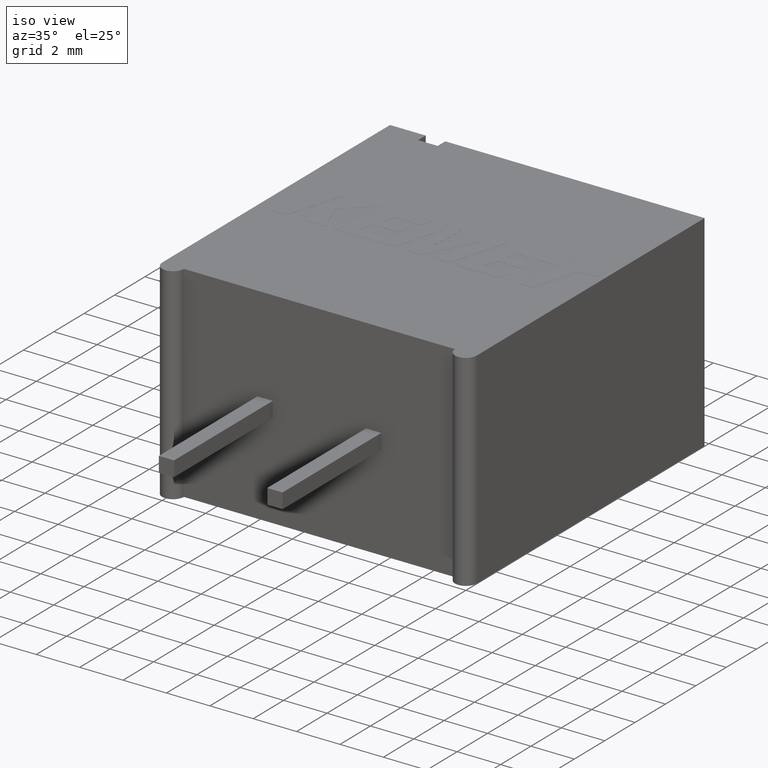
[diagram: clean part render]
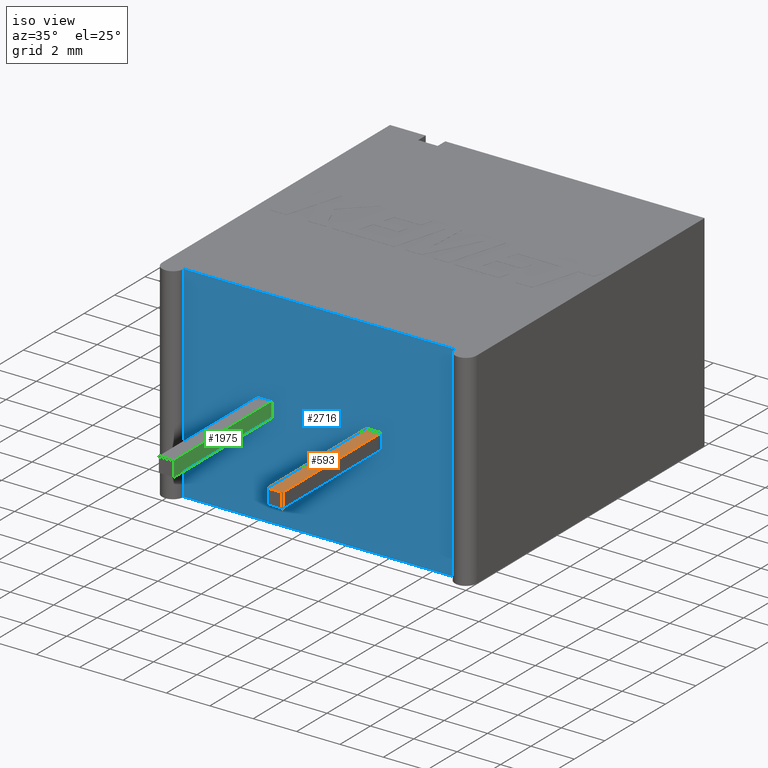
[diagram: same view with three faces highlighted in distinct colors, each labeled with its STEP entity id]
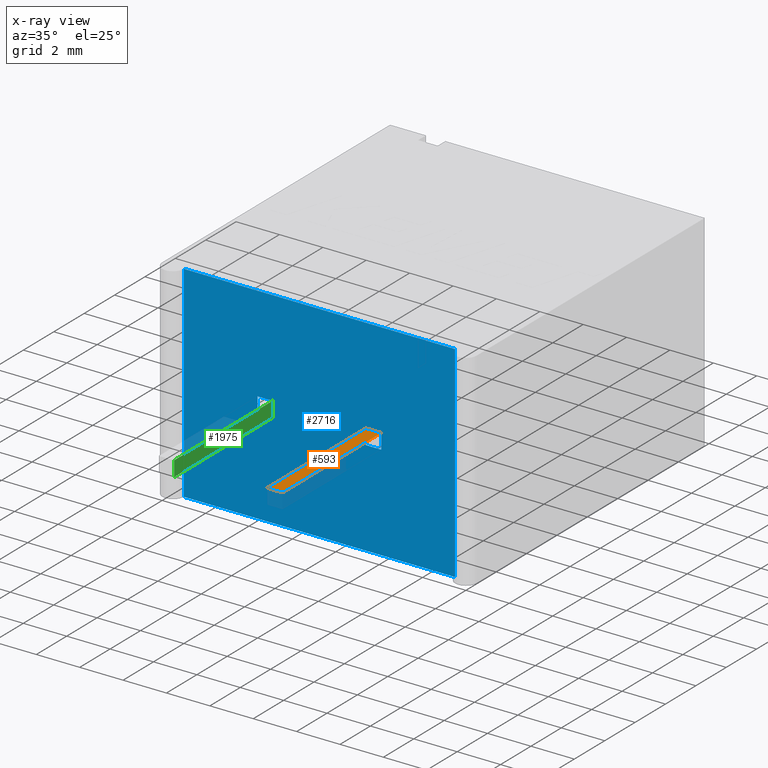
[diagram: x-ray of the same camera — body ghosted, the three highlighted faces saturated]
A machine part, iso view with three faces highlighted in distinct colors.
The next image is the same camera in x-ray (body ghosted, the three faces saturated) — at least one of them is partly hidden behind the body in this view.
Their STEP definitions:

[orange] entity #593 — the highlighted planar face has unit normal (0, 0, 1).
#90 = CARTESIAN_POINT ( 'NONE',  ( 10.10000000000000100, -6.500000000000000000, 5.099999999999997000 ) ) ;
#390 = LINE ( 'NONE', #1962, #834 ) ;
#534 = VERTEX_POINT ( 'NONE', #1828 ) ;
#593 = ADVANCED_FACE ( 'NONE', ( #2793 ), #1228, .T. ) ;
#666 = ORIENTED_EDGE ( 'NONE', *, *, #1034, .F. ) ;
#706 = VECTOR ( 'NONE', #2553, 1000.000000000000000 ) ;
#729 = CARTESIAN_POINT ( 'NONE',  ( 9.400000000000002100, -6.500000000000000000, 5.099999999999997000 ) ) ;
#783 = AXIS2_PLACEMENT_3D ( 'NONE', #2282, #2728, #791 ) ;
#791 = DIRECTION ( 'NONE',  ( 1.000000000000000000, 0.0000000000000000000, -0.0000000000000000000 ) ) ;
#834 = VECTOR ( 'NONE', #1141, 1000.000000000000000 ) ;
#1015 = EDGE_CURVE ( 'NONE', #1131, #1498, #390, .T. ) ;
#1034 = EDGE_CURVE ( 'NONE', #534, #1498, #2339, .T. ) ;
#1124 = VECTOR ( 'NONE', #1183, 1000.000000000000000 ) ;
#1131 = VERTEX_POINT ( 'NONE', #90 ) ;
#1141 = DIRECTION ( 'NONE',  ( -0.0000000000000000000, 1.000000000000000000, -0.0000000000000000000 ) ) ;
#1183 = DIRECTION ( 'NONE',  ( 1.000000000000000000, -0.0000000000000000000, -0.0000000000000000000 ) ) ;
#1228 = PLANE ( 'NONE',  #783 ) ;
#1424 = CARTESIAN_POINT ( 'NONE',  ( 9.400000000000002100, -6.500000000000000000, 5.099999999999997000 ) ) ;
#1498 = VERTEX_POINT ( 'NONE', #2098 ) ;
#1804 = CARTESIAN_POINT ( 'NONE',  ( 10.10000000000000100, 0.0000000000000000000, 5.099999999999997000 ) ) ;
#1809 = DIRECTION ( 'NONE',  ( 1.000000000000000000, -0.0000000000000000000, -0.0000000000000000000 ) ) ;
#1828 = CARTESIAN_POINT ( 'NONE',  ( 9.400000000000002100, 0.0000000000000000000, 5.099999999999997000 ) ) ;
#1834 = LINE ( 'NONE', #2471, #2283 ) ;
#1962 = CARTESIAN_POINT ( 'NONE',  ( 10.10000000000000100, -6.500000000000000000, 5.099999999999997000 ) ) ;
#1986 = EDGE_LOOP ( 'NONE', ( #666, #2146, #2385, #2160 ) ) ;
#2015 = EDGE_CURVE ( 'NONE', #2374, #534, #2317, .T. ) ;
#2098 = CARTESIAN_POINT ( 'NONE',  ( 10.10000000000000100, 0.0000000000000000000, 5.099999999999997000 ) ) ;
#2146 = ORIENTED_EDGE ( 'NONE', *, *, #2015, .F. ) ;
#2160 = ORIENTED_EDGE ( 'NONE', *, *, #1015, .T. ) ;
#2282 = CARTESIAN_POINT ( 'NONE',  ( 10.10000000000000100, -6.500000000000000000, 5.099999999999997000 ) ) ;
#2283 = VECTOR ( 'NONE', #1809, 1000.000000000000000 ) ;
#2317 = LINE ( 'NONE', #1424, #706 ) ;
#2339 = LINE ( 'NONE', #1804, #1124 ) ;
#2374 = VERTEX_POINT ( 'NONE', #729 ) ;
#2385 = ORIENTED_EDGE ( 'NONE', *, *, #2631, .T. ) ;
#2471 = CARTESIAN_POINT ( 'NONE',  ( 10.10000000000000100, -6.500000000000000000, 5.099999999999997000 ) ) ;
#2553 = DIRECTION ( 'NONE',  ( -0.0000000000000000000, 1.000000000000000000, -0.0000000000000000000 ) ) ;
#2631 = EDGE_CURVE ( 'NONE', #2374, #1131, #1834, .T. ) ;
#2728 = DIRECTION ( 'NONE',  ( 0.0000000000000000000, 0.0000000000000000000, 1.000000000000000000 ) ) ;
#2793 = FACE_OUTER_BOUND ( 'NONE', #1986, .T. ) ;

[blue] entity #2716 — the highlighted planar face has unit normal (0, 1, 0).
#4 = EDGE_CURVE ( 'NONE', #1967, #1819, #1995, .T. ) ;
#38 = EDGE_CURVE ( 'NONE', #225, #1948, #529, .T. ) ;
#88 = ORIENTED_EDGE ( 'NONE', *, *, #1999, .T. ) ;
#127 = LINE ( 'NONE', #2126, #1169 ) ;
#166 = DIRECTION ( 'NONE',  ( -0.0000000000000000000, -0.0000000000000000000, 1.000000000000000000 ) ) ;
#225 = VERTEX_POINT ( 'NONE', #670 ) ;
#316 = CARTESIAN_POINT ( 'NONE',  ( 13.49999999999999800, 0.0000000000000000000, 0.0000000000000000000 ) ) ;
#320 = DIRECTION ( 'NONE',  ( 0.0000000000000000000, -0.0000000000000000000, 1.000000000000000000 ) ) ;
#356 = VERTEX_POINT ( 'NONE', #1953 ) ;
#359 = CARTESIAN_POINT ( 'NONE',  ( 4.399999999999997700, 0.0000000000000000000, 5.099999999999997000 ) ) ;
#361 = EDGE_CURVE ( 'NONE', #356, #1967, #844, .T. ) ;
#375 = FACE_BOUND ( 'NONE', #2679, .T. ) ;
#378 = CARTESIAN_POINT ( 'NONE',  ( 5.099999999999997000, 0.0000000000000000000, 4.399999999999997700 ) ) ;
#380 = EDGE_CURVE ( 'NONE', #2109, #225, #1753, .T. ) ;
#417 = FACE_BOUND ( 'NONE', #1007, .T. ) ;
#470 = LINE ( 'NONE', #805, #2686 ) ;
#525 = ORIENTED_EDGE ( 'NONE', *, *, #2096, .F. ) ;
#529 = LINE ( 'NONE', #1788, #2654 ) ;
#534 = VERTEX_POINT ( 'NONE', #1828 ) ;
#544 = DIRECTION ( 'NONE',  ( 0.0000000000000000000, 0.0000000000000000000, 1.000000000000000000 ) ) ;
#599 = DIRECTION ( 'NONE',  ( 0.0000000000000000000, -0.0000000000000000000, -1.000000000000000000 ) ) ;
#602 = EDGE_CURVE ( 'NONE', #999, #2109, #1347, .T. ) ;
#670 = CARTESIAN_POINT ( 'NONE',  ( 4.399999999999997700, 0.0000000000000000000, 4.399999999999997700 ) ) ;
#674 = ORIENTED_EDGE ( 'NONE', *, *, #602, .F. ) ;
#719 = DIRECTION ( 'NONE',  ( 1.000000000000000000, -0.0000000000000000000, -0.0000000000000000000 ) ) ;
#763 = ORIENTED_EDGE ( 'NONE', *, *, #2276, .T. ) ;
#772 = VERTEX_POINT ( 'NONE', #2265 ) ;
#805 = CARTESIAN_POINT ( 'NONE',  ( 9.400000000000002100, 0.0000000000000000000, 4.399999999999997700 ) ) ;
#838 = EDGE_CURVE ( 'NONE', #356, #2676, #868, .T. ) ;
#844 = LINE ( 'NONE', #2148, #2139 ) ;
#868 = LINE ( 'NONE', #2313, #2047 ) ;
#880 = DIRECTION ( 'NONE',  ( 1.000000000000000000, 0.0000000000000000000, 0.0000000000000000000 ) ) ;
#914 = FACE_OUTER_BOUND ( 'NONE', #1525, .T. ) ;
#999 = VERTEX_POINT ( 'NONE', #2178 ) ;
#1007 = EDGE_LOOP ( 'NONE', ( #674, #525, #2488, #2138 ) ) ;
#1034 = EDGE_CURVE ( 'NONE', #534, #1498, #2339, .T. ) ;
#1115 = VECTOR ( 'NONE', #1580, 1000.000000000000000 ) ;
#1121 = DIRECTION ( 'NONE',  ( -0.0000000000000000000, -0.0000000000000000000, -1.000000000000000000 ) ) ;
#1124 = VECTOR ( 'NONE', #1183, 1000.000000000000000 ) ;
#1169 = VECTOR ( 'NONE', #166, 1000.000000000000000 ) ;
#1183 = DIRECTION ( 'NONE',  ( 1.000000000000000000, -0.0000000000000000000, -0.0000000000000000000 ) ) ;
#1186 = CARTESIAN_POINT ( 'NONE',  ( 13.49999999999999500, 0.0000000000000000000, 9.500000000000000000 ) ) ;
#1199 = VECTOR ( 'NONE', #1121, 1000.000000000000000 ) ;
#1200 = DIRECTION ( 'NONE',  ( -1.000000000000000000, 0.0000000000000000000, 0.0000000000000000000 ) ) ;
#1212 = DIRECTION ( 'NONE',  ( -1.000000000000000000, -0.0000000000000000000, -0.0000000000000000000 ) ) ;
#1276 = VERTEX_POINT ( 'NONE', #2746 ) ;
#1330 = ORIENTED_EDGE ( 'NONE', *, *, #838, .F. ) ;
#1347 = LINE ( 'NONE', #359, #1642 ) ;
#1352 = ORIENTED_EDGE ( 'NONE', *, *, #361, .T. ) ;
#1374 = PLANE ( 'NONE',  #1469 ) ;
#1422 = ORIENTED_EDGE ( 'NONE', *, *, #4, .T. ) ;
#1469 = AXIS2_PLACEMENT_3D ( 'NONE', #1588, #2006, #320 ) ;
#1483 = DIRECTION ( 'NONE',  ( 0.0000000000000000000, 0.0000000000000000000, 1.000000000000000000 ) ) ;
#1498 = VERTEX_POINT ( 'NONE', #2098 ) ;
#1525 = EDGE_LOOP ( 'NONE', ( #1422, #2668, #1330, #1352 ) ) ;
#1554 = CARTESIAN_POINT ( 'NONE',  ( 4.399999999999997700, 0.0000000000000000000, 4.399999999999997700 ) ) ;
#1560 = VECTOR ( 'NONE', #599, 1000.000000000000000 ) ;
#1580 = DIRECTION ( 'NONE',  ( 1.000000000000000000, 0.0000000000000000000, 0.0000000000000000000 ) ) ;
#1588 = CARTESIAN_POINT ( 'NONE',  ( 0.0000000000000000000, 0.0000000000000000000, 9.500000000000000000 ) ) ;
#1611 = ORIENTED_EDGE ( 'NONE', *, *, #2103, .T. ) ;
#1642 = VECTOR ( 'NONE', #1212, 1000.000000000000000 ) ;
#1727 = VECTOR ( 'NONE', #1483, 1000.000000000000000 ) ;
#1753 = LINE ( 'NONE', #1554, #1199 ) ;
#1788 = CARTESIAN_POINT ( 'NONE',  ( 5.099999999999997000, 0.0000000000000000000, 4.399999999999997700 ) ) ;
#1802 = CARTESIAN_POINT ( 'NONE',  ( 0.9999999999999995600, 0.0000000000000000000, 9.500000000000000000 ) ) ;
#1804 = CARTESIAN_POINT ( 'NONE',  ( 10.10000000000000100, 0.0000000000000000000, 5.099999999999997000 ) ) ;
#1819 = VERTEX_POINT ( 'NONE', #1186 ) ;
#1828 = CARTESIAN_POINT ( 'NONE',  ( 9.400000000000002100, 0.0000000000000000000, 5.099999999999997000 ) ) ;
#1948 = VERTEX_POINT ( 'NONE', #378 ) ;
#1953 = CARTESIAN_POINT ( 'NONE',  ( 1.000000000000000000, 0.0000000000000000000, 0.0000000000000000000 ) ) ;
#1967 = VERTEX_POINT ( 'NONE', #2260 ) ;
#1995 = LINE ( 'NONE', #316, #2171 ) ;
#1999 = EDGE_CURVE ( 'NONE', #772, #1276, #470, .T. ) ;
#2006 = DIRECTION ( 'NONE',  ( 0.0000000000000000000, 1.000000000000000000, 0.0000000000000000000 ) ) ;
#2047 = VECTOR ( 'NONE', #2100, 1000.000000000000000 ) ;
#2091 = CARTESIAN_POINT ( 'NONE',  ( 9.400000000000002100, 0.0000000000000000000, 4.749999999999997300 ) ) ;
#2096 = EDGE_CURVE ( 'NONE', #1948, #999, #127, .T. ) ;
#2098 = CARTESIAN_POINT ( 'NONE',  ( 10.10000000000000100, 0.0000000000000000000, 5.099999999999997000 ) ) ;
#2100 = DIRECTION ( 'NONE',  ( 0.0000000000000000000, 0.0000000000000000000, 1.000000000000000000 ) ) ;
#2103 = EDGE_CURVE ( 'NONE', #1276, #534, #2451, .T. ) ;
#2104 = ORIENTED_EDGE ( 'NONE', *, *, #1034, .T. ) ;
#2106 = CARTESIAN_POINT ( 'NONE',  ( 4.399999999999997700, 0.0000000000000000000, 5.099999999999997000 ) ) ;
#2109 = VERTEX_POINT ( 'NONE', #2106 ) ;
#2126 = CARTESIAN_POINT ( 'NONE',  ( 5.099999999999997000, 0.0000000000000000000, 4.749999999999997300 ) ) ;
#2138 = ORIENTED_EDGE ( 'NONE', *, *, #380, .F. ) ;
#2139 = VECTOR ( 'NONE', #880, 1000.000000000000000 ) ;
#2148 = CARTESIAN_POINT ( 'NONE',  ( 0.0000000000000000000, 0.0000000000000000000, 0.0000000000000000000 ) ) ;
#2171 = VECTOR ( 'NONE', #544, 1000.000000000000000 ) ;
#2178 = CARTESIAN_POINT ( 'NONE',  ( 5.099999999999997000, 0.0000000000000000000, 5.099999999999997000 ) ) ;
#2212 = LINE ( 'NONE', #2460, #1115 ) ;
#2260 = CARTESIAN_POINT ( 'NONE',  ( 13.49999999999999500, 0.0000000000000000000, 0.0000000000000000000 ) ) ;
#2265 = CARTESIAN_POINT ( 'NONE',  ( 10.10000000000000100, 0.0000000000000000000, 4.399999999999997700 ) ) ;
#2276 = EDGE_CURVE ( 'NONE', #1498, #772, #2566, .T. ) ;
#2313 = CARTESIAN_POINT ( 'NONE',  ( 1.000000000000000000, 0.0000000000000000000, 0.0000000000000000000 ) ) ;
#2339 = LINE ( 'NONE', #1804, #1124 ) ;
#2377 = EDGE_CURVE ( 'NONE', #2676, #1819, #2212, .T. ) ;
#2451 = LINE ( 'NONE', #2091, #1727 ) ;
#2460 = CARTESIAN_POINT ( 'NONE',  ( 0.0000000000000000000, 0.0000000000000000000, 9.500000000000000000 ) ) ;
#2488 = ORIENTED_EDGE ( 'NONE', *, *, #38, .F. ) ;
#2535 = CARTESIAN_POINT ( 'NONE',  ( 10.10000000000000100, 0.0000000000000000000, 4.399999999999997700 ) ) ;
#2566 = LINE ( 'NONE', #2535, #1560 ) ;
#2654 = VECTOR ( 'NONE', #719, 1000.000000000000000 ) ;
#2668 = ORIENTED_EDGE ( 'NONE', *, *, #2377, .F. ) ;
#2676 = VERTEX_POINT ( 'NONE', #1802 ) ;
#2679 = EDGE_LOOP ( 'NONE', ( #88, #1611, #2104, #763 ) ) ;
#2686 = VECTOR ( 'NONE', #1200, 1000.000000000000000 ) ;
#2716 = ADVANCED_FACE ( 'NONE', ( #375, #914, #417 ), #1374, .F. ) ;
#2746 = CARTESIAN_POINT ( 'NONE',  ( 9.400000000000002100, 0.0000000000000000000, 4.399999999999997700 ) ) ;

[green] entity #1975 — the highlighted planar face has unit normal (-1, 0, -0).
#86 = ORIENTED_EDGE ( 'NONE', *, *, #1282, .T. ) ;
#127 = LINE ( 'NONE', #2126, #1169 ) ;
#166 = DIRECTION ( 'NONE',  ( -0.0000000000000000000, -0.0000000000000000000, 1.000000000000000000 ) ) ;
#223 = ORIENTED_EDGE ( 'NONE', *, *, #1099, .F. ) ;
#296 = CARTESIAN_POINT ( 'NONE',  ( 5.099999999999997000, -6.500000000000000000, 5.099999999999997000 ) ) ;
#378 = CARTESIAN_POINT ( 'NONE',  ( 5.099999999999997000, 0.0000000000000000000, 4.399999999999997700 ) ) ;
#495 = CARTESIAN_POINT ( 'NONE',  ( 5.099999999999997000, -6.500000000000000000, 5.099999999999997000 ) ) ;
#506 = LINE ( 'NONE', #964, #2209 ) ;
#512 = CARTESIAN_POINT ( 'NONE',  ( 5.099999999999997000, -6.500000000000000000, 4.399999999999997700 ) ) ;
#578 = CARTESIAN_POINT ( 'NONE',  ( 5.099999999999997000, -6.500000000000000000, 4.749999999999997300 ) ) ;
#653 = FACE_OUTER_BOUND ( 'NONE', #2105, .T. ) ;
#778 = DIRECTION ( 'NONE',  ( -0.0000000000000000000, 1.000000000000000000, -0.0000000000000000000 ) ) ;
#816 = DIRECTION ( 'NONE',  ( -0.0000000000000000000, 0.0000000000000000000, 1.000000000000000000 ) ) ;
#964 = CARTESIAN_POINT ( 'NONE',  ( 5.099999999999997000, -6.500000000000000000, 5.099999999999997000 ) ) ;
#999 = VERTEX_POINT ( 'NONE', #2178 ) ;
#1033 = LINE ( 'NONE', #296, #1322 ) ;
#1099 = EDGE_CURVE ( 'NONE', #1746, #999, #1033, .T. ) ;
#1169 = VECTOR ( 'NONE', #166, 1000.000000000000000 ) ;
#1188 = DIRECTION ( 'NONE',  ( -0.0000000000000000000, -0.0000000000000000000, 1.000000000000000000 ) ) ;
#1282 = EDGE_CURVE ( 'NONE', #1823, #1948, #2781, .T. ) ;
#1322 = VECTOR ( 'NONE', #778, 1000.000000000000000 ) ;
#1407 = VECTOR ( 'NONE', #2132, 1000.000000000000000 ) ;
#1746 = VERTEX_POINT ( 'NONE', #495 ) ;
#1823 = VERTEX_POINT ( 'NONE', #512 ) ;
#1852 = ORIENTED_EDGE ( 'NONE', *, *, #2096, .T. ) ;
#1948 = VERTEX_POINT ( 'NONE', #378 ) ;
#1975 = ADVANCED_FACE ( 'NONE', ( #653 ), #2496, .F. ) ;
#2082 = DIRECTION ( 'NONE',  ( -1.000000000000000000, 0.0000000000000000000, -0.0000000000000000000 ) ) ;
#2096 = EDGE_CURVE ( 'NONE', #1948, #999, #127, .T. ) ;
#2105 = EDGE_LOOP ( 'NONE', ( #1852, #223, #2417, #86 ) ) ;
#2125 = CARTESIAN_POINT ( 'NONE',  ( 5.099999999999997000, -6.500000000000000000, 4.399999999999997700 ) ) ;
#2126 = CARTESIAN_POINT ( 'NONE',  ( 5.099999999999997000, 0.0000000000000000000, 4.749999999999997300 ) ) ;
#2132 = DIRECTION ( 'NONE',  ( -0.0000000000000000000, 1.000000000000000000, -0.0000000000000000000 ) ) ;
#2178 = CARTESIAN_POINT ( 'NONE',  ( 5.099999999999997000, 0.0000000000000000000, 5.099999999999997000 ) ) ;
#2209 = VECTOR ( 'NONE', #1188, 1000.000000000000000 ) ;
#2417 = ORIENTED_EDGE ( 'NONE', *, *, #2613, .F. ) ;
#2496 = PLANE ( 'NONE',  #2643 ) ;
#2613 = EDGE_CURVE ( 'NONE', #1823, #1746, #506, .T. ) ;
#2643 = AXIS2_PLACEMENT_3D ( 'NONE', #578, #2082, #816 ) ;
#2781 = LINE ( 'NONE', #2125, #1407 ) ;